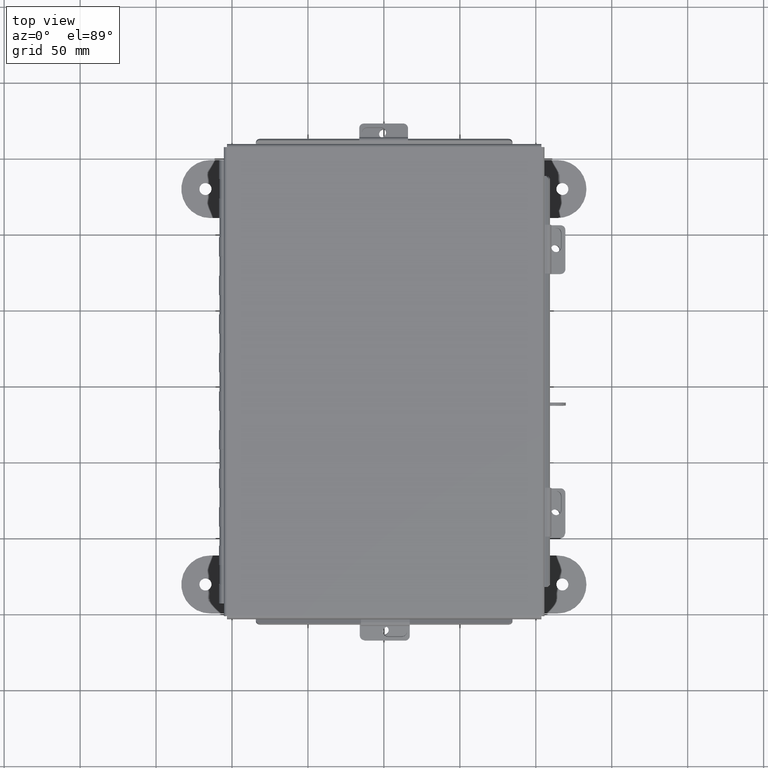
[diagram: clean part render]
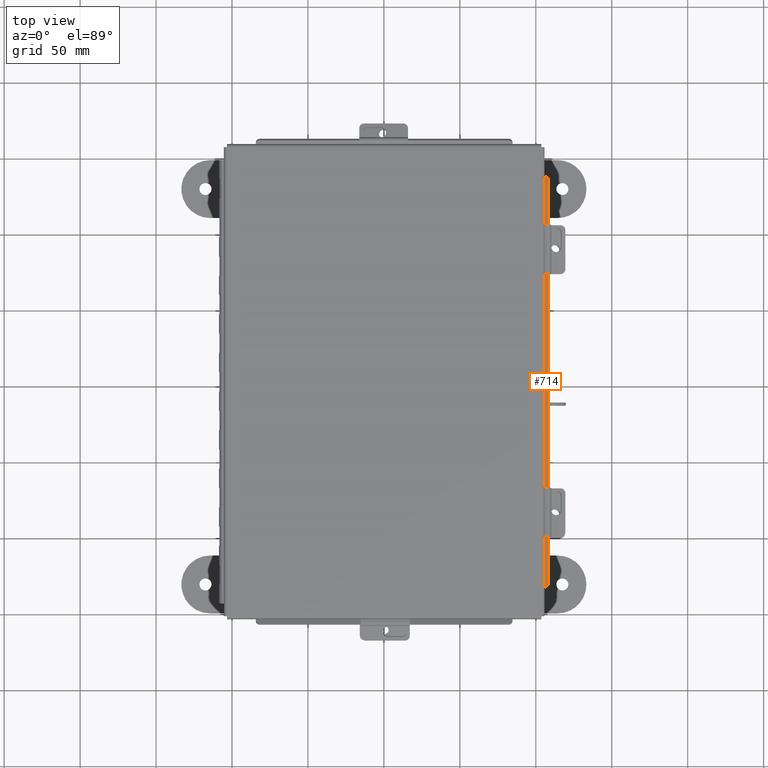
[diagram: same view with one face highlighted and labeled with its STEP entity id]
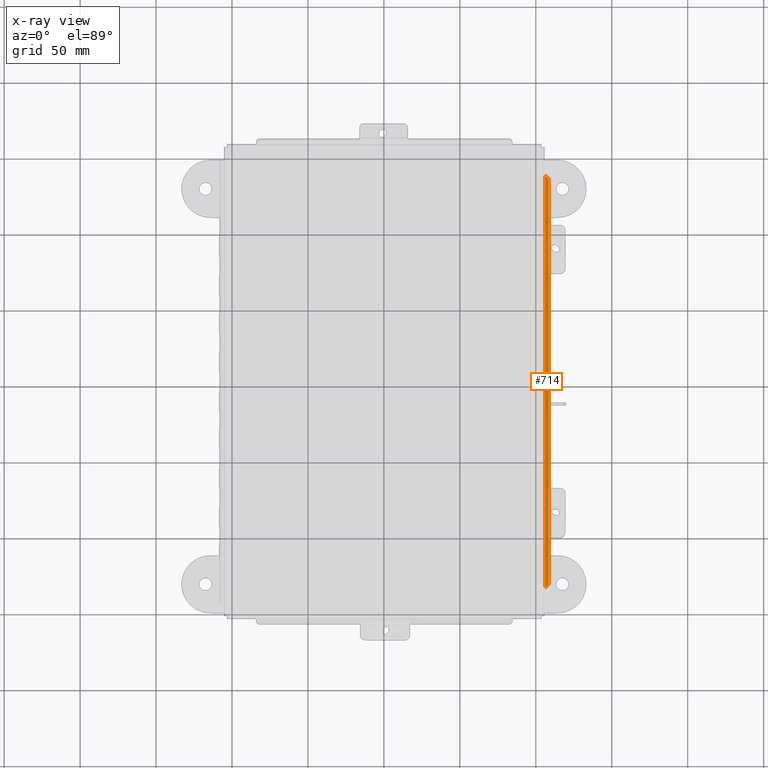
[diagram: x-ray of the same camera — body ghosted, the highlighted face saturated]
A machine part, top view. The second image highlights one B-rep face of the part: STEP entity #714.
The next image is the same camera in x-ray: the body ghosted, the highlighted face saturated — about 0% of this face is hidden behind the body in this view.
In plain terms, the highlighted planar face has unit normal (-0.5, 0, 0.866).
Its self-contained STEP definition (entity closure, byte-faithful):
#102 = CARTESIAN_POINT ( 'NONE',  ( -4.169750000000023600, -5.324478932188136500, 0.4795057713659400300 ) ) ;
#200 = ORIENTED_EDGE ( 'NONE', *, *, #14794, .F. ) ;
#232 = CARTESIAN_POINT ( 'NONE',  ( -4.260706350946133400, -5.224478932188136900, 0.4269920976626969100 ) ) ;
#424 = DIRECTION ( 'NONE',  ( 0.5000000000000010000, 4.634557818173424000E-030, -0.8660254037844380400 ) ) ;
#455 = DIRECTION ( 'NONE',  ( 0.5000000000000010000, 4.634557818173424000E-030, -0.8660254037844380400 ) ) ;
#714 = ADVANCED_FACE ( 'NONE', ( #13107 ), #6247, .T. ) ;
#771 = EDGE_CURVE ( 'NONE', #3820, #2998, #5948, .T. ) ;
#1196 = CARTESIAN_POINT ( 'NONE',  ( -4.174103810567690000, 5.224478932188132400, 0.4769920976626977300 ) ) ;
#1453 = VERTEX_POINT ( 'NONE', #12313 ) ;
#2998 = VERTEX_POINT ( 'NONE', #8951 ) ;
#3011 = CARTESIAN_POINT ( 'NONE',  ( -1.250069589632089700, 0.0000000000000000000, 2.165184042239560300 ) ) ;
#3645 = VERTEX_POINT ( 'NONE', #14060 ) ;
#3653 = LINE ( 'NONE', #102, #12481 ) ;
#3666 = DIRECTION ( 'NONE',  ( -0.8660254037844380400, -9.059668427480751600E-015, -0.5000000000000007800 ) ) ;
#3820 = VERTEX_POINT ( 'NONE', #7394 ) ;
#4466 = LINE ( 'NONE', #15108, #9705 ) ;
#5555 = ORIENTED_EDGE ( 'NONE', *, *, #771, .T. ) ;
#5862 = ORIENTED_EDGE ( 'NONE', *, *, #9548, .T. ) ;
#5948 = CIRCLE ( 'NONE', #10790, 0.1000000000000004100 ) ;
#6070 = ORIENTED_EDGE ( 'NONE', *, *, #11266, .F. ) ;
#6247 = PLANE ( 'NONE',  #7550 ) ;
#6616 = VECTOR ( 'NONE', #15500, 39.37007874015748100 ) ;
#6996 = CARTESIAN_POINT ( 'NONE',  ( -4.174103810567690000, -5.324478932188136500, 0.4769920976627064500 ) ) ;
#7063 = CARTESIAN_POINT ( 'NONE',  ( -4.156250000000017800, -5.324478932188136500, 0.4872999999999989000 ) ) ;
#7394 = CARTESIAN_POINT ( 'NONE',  ( -4.260706350946133400, 5.224478932188132400, 0.4269920976626969100 ) ) ;
#7478 = EDGE_CURVE ( 'NONE', #1453, #2998, #8242, .T. ) ;
#7535 = VERTEX_POINT ( 'NONE', #232 ) ;
#7550 = AXIS2_PLACEMENT_3D ( 'NONE', #3011, #10982, #11955 ) ;
#7558 = CARTESIAN_POINT ( 'NONE',  ( -4.174103810567690000, -5.224478932188136900, 0.4769920976627064500 ) ) ;
#7888 = DIRECTION ( 'NONE',  ( -3.265674045713817900E-030, -1.000000000000000000, 3.204747427460360500E-030 ) ) ;
#8242 = LINE ( 'NONE', #9610, #12203 ) ;
#8766 = DIRECTION ( 'NONE',  ( -0.8660254037844377100, 0.0000000000000000000, -0.5000000000000015500 ) ) ;
#8951 = CARTESIAN_POINT ( 'NONE',  ( -4.174103810567690900, 5.324478932188134700, 0.4769920976626966200 ) ) ;
#9548 = EDGE_CURVE ( 'NONE', #14511, #7535, #14019, .T. ) ;
#9610 = CARTESIAN_POINT ( 'NONE',  ( -4.260706350946133400, 5.324478932188133000, 0.4269920976626969100 ) ) ;
#9614 = ORIENTED_EDGE ( 'NONE', *, *, #7478, .F. ) ;
#9705 = VECTOR ( 'NONE', #7888, 39.37007874015748100 ) ;
#10790 = AXIS2_PLACEMENT_3D ( 'NONE', #1196, #455, #14994 ) ;
#10982 = DIRECTION ( 'NONE',  ( 0.5000000000000011100, 4.634557818173425400E-030, -0.8660254037844381500 ) ) ;
#11266 = EDGE_CURVE ( 'NONE', #3645, #1453, #3653, .T. ) ;
#11356 = AXIS2_PLACEMENT_3D ( 'NONE', #7558, #424, #8766 ) ;
#11526 = LINE ( 'NONE', #7063, #6616 ) ;
#11627 = EDGE_CURVE ( 'NONE', #14511, #3645, #11526, .T. ) ;
#11955 = DIRECTION ( 'NONE',  ( -0.8660254037844381500, -1.195617309475590900E-030, -0.5000000000000011100 ) ) ;
#12092 = DIRECTION ( 'NONE',  ( 1.026146606440487400E-016, 1.000000000000000000, -5.130733032202616300E-017 ) ) ;
#12203 = VECTOR ( 'NONE', #3666, 39.37007874015748100 ) ;
#12313 = CARTESIAN_POINT ( 'NONE',  ( -4.169750000000023600, 5.324478932188133000, 0.4795057713659400300 ) ) ;
#12325 = EDGE_LOOP ( 'NONE', ( #13820, #5862, #200, #5555, #9614, #6070 ) ) ;
#12481 = VECTOR ( 'NONE', #12092, 39.37007874015748100 ) ;
#13107 = FACE_OUTER_BOUND ( 'NONE', #12325, .T. ) ;
#13820 = ORIENTED_EDGE ( 'NONE', *, *, #11627, .F. ) ;
#14019 = CIRCLE ( 'NONE', #11356, 0.1000000000000004100 ) ;
#14060 = CARTESIAN_POINT ( 'NONE',  ( -4.169750000000023600, -5.324478932188136500, 0.4795057713659400300 ) ) ;
#14511 = VERTEX_POINT ( 'NONE', #6996 ) ;
#14794 = EDGE_CURVE ( 'NONE', #3820, #7535, #4466, .T. ) ;
#14994 = DIRECTION ( 'NONE',  ( -0.8660254037844377100, 0.0000000000000000000, -0.5000000000000015500 ) ) ;
#15108 = CARTESIAN_POINT ( 'NONE',  ( -4.260706350946133400, -5.324478932188136500, 0.4269920976626969100 ) ) ;
#15500 = DIRECTION ( 'NONE',  ( 0.8660254037844380400, 1.195617309475590800E-030, 0.5000000000000010000 ) ) ;